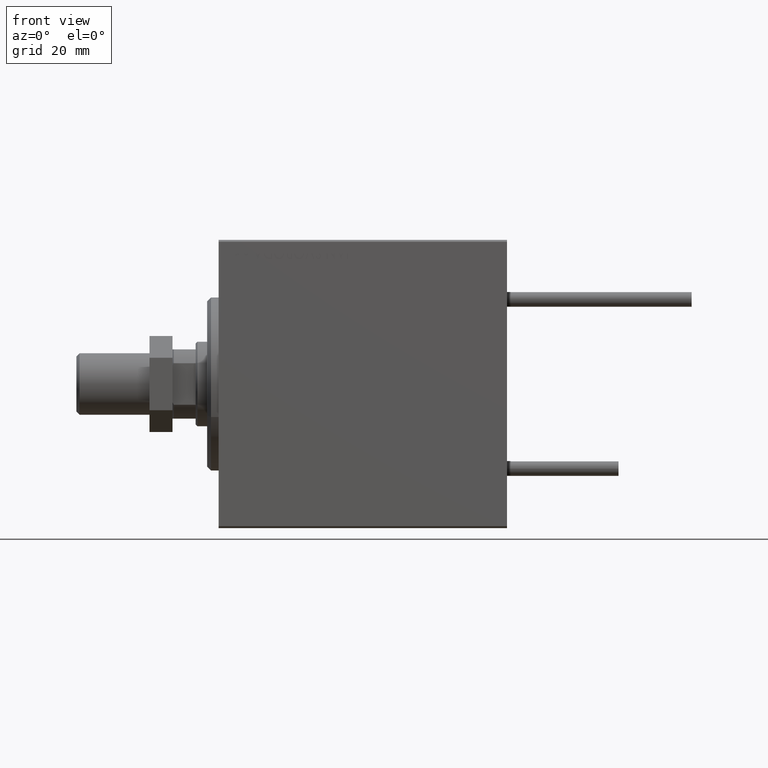
[diagram: clean part render]
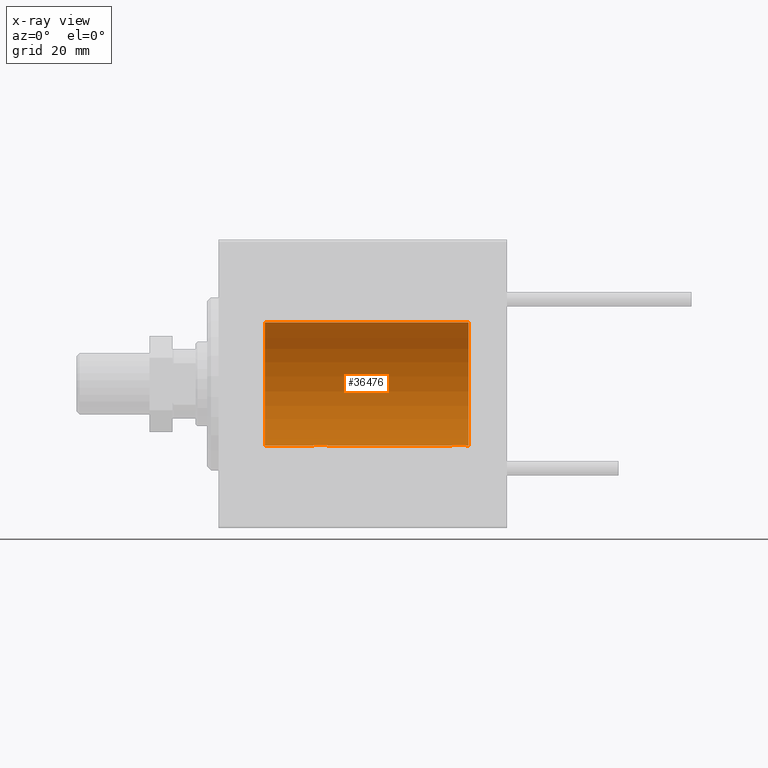
[diagram: x-ray — body ghosted, one internal face saturated and labeled with its STEP entity id]
A machine part, front view, then the same camera in x-ray: the body is ghosted and one INTERNAL B-rep face — a face not visible from any outside direction — is saturated and labeled: STEP entity #36476.
In plain terms, the highlighted cylindrical surface (partial cylindrical patch) has radius 16 mm, axis along (-1, -0, -0).
Its self-contained STEP definition (entity closure, byte-faithful):
#709 = CARTESIAN_POINT ( 'NONE',  ( 24.90948495147901554, 1.219564485341768645, -15.95382484008323409 ) ) ;
#1208 = CARTESIAN_POINT ( 'NONE',  ( 24.76431901501738864, 1.002241074716281544, -15.96895041604536125 ) ) ;
#1264 = CARTESIAN_POINT ( 'NONE',  ( 65.00000000000000000, 1.959434878635765131E-15, -16.00000000000000000 ) ) ;
#1461 = CARTESIAN_POINT ( 'NONE',  ( 28.48690924832125759, 0.2632563459770846381, -15.99834873924246814 ) ) ;
#1486 = CARTESIAN_POINT ( 'NONE',  ( 63.01913097710111344, 1.935876924222080797, -15.88247600692093187 ) ) ;
#1975 = CARTESIAN_POINT ( 'NONE',  ( 63.50311247035038065, 1.735145127817755650, -15.90580292899658055 ) ) ;
#2425 = CARTESIAN_POINT ( 'NONE',  ( 24.50000000000000000, -2.103178745110437193E-15, -16.00000000000000000 ) ) ;
#2462 = CARTESIAN_POINT ( 'NONE',  ( 65.00000000000000000, 0.000000000000000000, 16.00000000000000000 ) ) ;
#2874 = DIRECTION ( 'NONE',  ( 0.000000000000000000, 0.000000000000000000, 1.000000000000000000 ) ) ;
#3062 = EDGE_CURVE ( 'NONE', #45682, #41926, #46018, .T. ) ;
#3316 = EDGE_LOOP ( 'NONE', ( #13432, #8344, #14265, #6584, #31642, #24035, #20152, #44506 ) ) ;
#3897 = CARTESIAN_POINT ( 'NONE',  ( 65.00000000000000000, 0.000000000000000000, 0.000000000000000000 ) ) ;
#4567 = CARTESIAN_POINT ( 'NONE',  ( 28.49999999999999645, 1.959434851238818770E-15, -16.00000000000000000 ) ) ;
#4814 = CARTESIAN_POINT ( 'NONE',  ( 27.14386968033013758, 1.898058445420891305, -15.88709929148890510 ) ) ;
#5079 = CARTESIAN_POINT ( 'NONE',  ( 63.82075824828930877, 1.507649250492136606, -15.92908549642226745 ) ) ;
#5304 = CARTESIAN_POINT ( 'NONE',  ( 28.39783726498895433, 0.6445079780200565489, -15.98747331501412106 ) ) ;
#5328 = CARTESIAN_POINT ( 'NONE',  ( 61.97468243540594557, 1.947280337074165368, -15.88137861827787134 ) ) ;
#5380 = VERTEX_POINT ( 'NONE', #35590 ) ;
#5419 = CIRCLE ( 'NONE', #28383, 16.00000000000000000 ) ;
#5449 = EDGE_CURVE ( 'NONE', #38694, #17008, #22232, .T. ) ;
#5581 = CARTESIAN_POINT ( 'NONE',  ( 60.76431901501735666, 1.002241074716276437, -15.96895041604536125 ) ) ;
#5827 = CARTESIAN_POINT ( 'NONE',  ( 64.43569052926127938, 0.5198215460038770885, -15.99206840425679310 ) ) ;
#6584 = ORIENTED_EDGE ( 'NONE', *, *, #20754, .T. ) ;
#7262 = EDGE_CURVE ( 'NONE', #39260, #41926, #44209, .T. ) ;
#8344 = ORIENTED_EDGE ( 'NONE', *, *, #48400, .F. ) ;
#8655 = AXIS2_PLACEMENT_3D ( 'NONE', #18930, #23046, #30490 ) ;
#10588 = DIRECTION ( 'NONE',  ( -1.000000000000000000, -0.000000000000000000, -0.000000000000000000 ) ) ;
#11514 = CARTESIAN_POINT ( 'NONE',  ( 11.99999999999999645, 1.959434878635765131E-15, -16.00000000000000000 ) ) ;
#12092 = EDGE_CURVE ( 'NONE', #38694, #37522, #28979, .T. ) ;
#12798 = CARTESIAN_POINT ( 'NONE',  ( 62.23808537237743366, 1.999903730784159173, -15.87451999516785861 ) ) ;
#13024 = CARTESIAN_POINT ( 'NONE',  ( 27.38617757057268420, 1.797743958659262731, -15.89876304682111652 ) ) ;
#13047 = CARTESIAN_POINT ( 'NONE',  ( 64.39783726498897920, 0.6445079780200581032, -15.98747331501412816 ) ) ;
#13085 = CARTESIAN_POINT ( 'NONE',  ( 64.50000000000000000, 1.959434851248285101E-15, -16.00000000000000000 ) ) ;
#13208 = EDGE_CURVE ( 'NONE', #5380, #32744, #26595, .T. ) ;
#13260 = CARTESIAN_POINT ( 'NONE',  ( 27.82075824828932653, 1.507649250492136606, -15.92908549642227101 ) ) ;
#13285 = CARTESIAN_POINT ( 'NONE',  ( 64.29749928605036757, 0.8866640484200128958, -15.97587307151817804 ) ) ;
#13432 = ORIENTED_EDGE ( 'NONE', *, *, #3062, .F. ) ;
#14265 = ORIENTED_EDGE ( 'NONE', *, *, #13208, .T. ) ;
#14715 = DIRECTION ( 'NONE',  ( -1.000000000000000000, -0.000000000000000000, -0.000000000000000000 ) ) ;
#16361 = CARTESIAN_POINT ( 'NONE',  ( 27.01913097710113121, 1.935876924222081907, -15.88247600692093187 ) ) ;
#16598 = CARTESIAN_POINT ( 'NONE',  ( 28.29749928605040665, 0.8866640484200122296, -15.97587307151818514 ) ) ;
#16883 = CARTESIAN_POINT ( 'NONE',  ( 64.50000000000000000, 1.959434851248285101E-15, -16.00000000000000000 ) ) ;
#17008 = VERTEX_POINT ( 'NONE', #41610 ) ;
#17623 = CARTESIAN_POINT ( 'NONE',  ( 61.49340818440418843, 1.747750603376301060, -15.90457341008072767 ) ) ;
#18018 = DIRECTION ( 'NONE',  ( -1.000000000000000000, 0.000000000000000000, 0.000000000000000000 ) ) ;
#18930 = CARTESIAN_POINT ( 'NONE',  ( 11.99999999999999645, 0.000000000000000000, 0.000000000000000000 ) ) ;
#19034 = VECTOR ( 'NONE', #42004, 1000.000000000000000 ) ;
#20152 = ORIENTED_EDGE ( 'NONE', *, *, #41533, .F. ) ;
#20466 = CARTESIAN_POINT ( 'NONE',  ( 27.50311247035038775, 1.735145127817748323, -15.90580292899658410 ) ) ;
#20712 = CARTESIAN_POINT ( 'NONE',  ( 26.76251583007899271, 1.987008272775795614, -15.87616016863256263 ) ) ;
#20754 = EDGE_CURVE ( 'NONE', #32744, #37522, #32431, .T. ) ;
#20968 = CARTESIAN_POINT ( 'NONE',  ( 24.99389287531754178, 1.322357532253823909, -15.94553003295877325 ) ) ;
#20991 = CARTESIAN_POINT ( 'NONE',  ( 62.62985308350498315, 2.000047931387145983, -15.87450182760079898 ) ) ;
#21246 = CARTESIAN_POINT ( 'NONE',  ( 63.71967657442274913, 1.590393755196015002, -15.92092783521423272 ) ) ;
#21746 = CARTESIAN_POINT ( 'NONE',  ( 63.38617757057270552, 1.797743958659260510, -15.89876304682112362 ) ) ;
#22232 = B_SPLINE_CURVE_WITH_KNOTS ( 'NONE', 3,
 ( #43586, #48187, #24817, #35638, #28683, #24336, #1208, #709, #20968, #32282, #44092, #40489, #36637, #40004, #20712, #16361, #4814, #13024, #20466, #39744, #13260, #47929, #24578, #36137, #16598, #5304, #28436, #1461, #32786, #4567 ),
 .UNSPECIFIED., .F., .F.,
 ( 4, 2, 2, 2, 2, 2, 2, 2, 2, 2, 2, 2, 2, 2, 4 ),
 ( 6.061338176617876434E-19, 0.0003911894522871146732, 0.0007823789045742288043, 0.001173568356861343261, 0.001564757809148457609, 0.002347136713722686955, 0.003129515618296916518, 0.003520705070584036721, 0.003911894522871156923, 0.004303083975158277993, 0.004694273427445398196, 0.005085462879732518399, 0.005476652332019638601, 0.005867841784306759671, 0.006259031236593879007 ),
 .UNSPECIFIED. ) ;
#23046 = DIRECTION ( 'NONE',  ( -1.000000000000000000, 0.000000000000000000, 0.000000000000000000 ) ) ;
#24035 = ORIENTED_EDGE ( 'NONE', *, *, #5449, .T. ) ;
#24043 = VECTOR ( 'NONE', #14715, 1000.000000000000000 ) ;
#24336 = CARTESIAN_POINT ( 'NONE',  ( 24.70286585251780664, 0.8874076679346751817, -15.97583181162461408 ) ) ;
#24578 = CARTESIAN_POINT ( 'NONE',  ( 28.09001528100123224, 1.220169175415120932, -15.95377581882983797 ) ) ;
#24817 = CARTESIAN_POINT ( 'NONE',  ( 24.51299475991587329, 0.2623312429553279479, -15.99836091803360105 ) ) ;
#24843 = CARTESIAN_POINT ( 'NONE',  ( 60.50000000000000000, 0.1322838750249188400, -15.99999999999999645 ) ) ;
#25339 = CARTESIAN_POINT ( 'NONE',  ( 61.27043888260216420, 1.598790766515151063, -15.92099550861380841 ) ) ;
#25555 = AXIS2_PLACEMENT_3D ( 'NONE', #3897, #10588, #34460 ) ;
#25586 = CARTESIAN_POINT ( 'NONE',  ( 60.51299475991586263, 0.2623312429553253389, -15.99836091803360283 ) ) ;
#26595 = LINE ( 'NONE', #2462, #19034 ) ;
#27811 = CARTESIAN_POINT ( 'NONE',  ( 65.00000000000000000, 1.959434878635765131E-15, -16.00000000000000000 ) ) ;
#28383 = AXIS2_PLACEMENT_3D ( 'NONE', #45496, #18018, #2874 ) ;
#28436 = CARTESIAN_POINT ( 'NONE',  ( 28.43569052926130070, 0.5198215460038754232, -15.99206840425679310 ) ) ;
#28683 = CARTESIAN_POINT ( 'NONE',  ( 24.60241129944407135, 0.6452446332038127563, -15.98744362947834574 ) ) ;
#28964 = CARTESIAN_POINT ( 'NONE',  ( 60.49999999999999289, -9.573340169032840992E-15, -16.00000000000000000 ) ) ;
#28979 = LINE ( 'NONE', #1264, #33778 ) ;
#29193 = CARTESIAN_POINT ( 'NONE',  ( 64.23482670674952999, 1.003662148334373283, -15.96885838080210362 ) ) ;
#29444 = CARTESIAN_POINT ( 'NONE',  ( 62.76251583007899626, 1.987008272775793838, -15.87616016863256263 ) ) ;
#30490 = DIRECTION ( 'NONE',  ( 0.000000000000000000, 0.000000000000000000, 1.000000000000000000 ) ) ;
#31642 = ORIENTED_EDGE ( 'NONE', *, *, #12092, .F. ) ;
#32158 = DIRECTION ( 'NONE',  ( -1.000000000000000000, -0.000000000000000000, -0.000000000000000000 ) ) ;
#32282 = CARTESIAN_POINT ( 'NONE',  ( 25.27043888260214999, 1.598790766515152173, -15.92099550861380486 ) ) ;
#32431 = CIRCLE ( 'NONE', #8655, 16.00000000000000000 ) ;
#32744 = VERTEX_POINT ( 'NONE', #43160 ) ;
#32786 = CARTESIAN_POINT ( 'NONE',  ( 28.49999999999999645, 0.1305944228192321699, -16.00000000000000000 ) ) ;
#33309 = CARTESIAN_POINT ( 'NONE',  ( 64.09001528100125711, 1.220169175415124929, -15.95377581882983975 ) ) ;
#33778 = VECTOR ( 'NONE', #44149, 1000.000000000000000 ) ;
#34283 = CARTESIAN_POINT ( 'NONE',  ( 65.00000000000000000, 1.959434878635765131E-15, -16.00000000000000000 ) ) ;
#34460 = DIRECTION ( 'NONE',  ( 0.000000000000000000, 0.000000000000000000, 1.000000000000000000 ) ) ;
#34796 = VECTOR ( 'NONE', #32158, 1000.000000000000000 ) ;
#35590 = CARTESIAN_POINT ( 'NONE',  ( 65.00000000000000000, 0.000000000000000000, 16.00000000000000000 ) ) ;
#35638 = CARTESIAN_POINT ( 'NONE',  ( 24.56388673317935556, 0.5181437283162043661, -15.99211983514074653 ) ) ;
#36137 = CARTESIAN_POINT ( 'NONE',  ( 28.23482670674955486, 1.003662148334367954, -15.96885838080211073 ) ) ;
#36413 = CARTESIAN_POINT ( 'NONE',  ( 64.48690924832126825, 0.2632563459770859149, -15.99834873924246459 ) ) ;
#36476 = ADVANCED_FACE ( 'NONE', ( #42660 ), #42160, .F. ) ;
#36637 = CARTESIAN_POINT ( 'NONE',  ( 26.23808537237744787, 1.999903730784159617, -15.87451999516785861 ) ) ;
#37152 = CARTESIAN_POINT ( 'NONE',  ( 60.56388673317934490, 0.5181437283162021457, -15.99211983514074653 ) ) ;
#37415 = CARTESIAN_POINT ( 'NONE',  ( 60.60241129944407845, 0.6452446332038094257, -15.98744362947834929 ) ) ;
#37522 = VERTEX_POINT ( 'NONE', #11514 ) ;
#38694 = VERTEX_POINT ( 'NONE', #2425 ) ;
#39260 = VERTEX_POINT ( 'NONE', #28964 ) ;
#39370 = LINE ( 'NONE', #27811, #34796 ) ;
#39744 = CARTESIAN_POINT ( 'NONE',  ( 27.71967657442277400, 1.590393755196007008, -15.92092783521424337 ) ) ;
#40004 = CARTESIAN_POINT ( 'NONE',  ( 26.62985308350499025, 2.000047931387146871, -15.87450182760080253 ) ) ;
#40272 = CARTESIAN_POINT ( 'NONE',  ( 60.49999999999999289, -9.573340169032840992E-15, -16.00000000000000000 ) ) ;
#40489 = CARTESIAN_POINT ( 'NONE',  ( 25.97468243540595978, 1.947280337074166923, -15.88137861827786779 ) ) ;
#40512 = CARTESIAN_POINT ( 'NONE',  ( 60.99389287531753467, 1.322357532253821688, -15.94553003295876970 ) ) ;
#41002 = CARTESIAN_POINT ( 'NONE',  ( 63.14386968033014114, 1.898058445420889750, -15.88709929148890510 ) ) ;
#41533 = EDGE_CURVE ( 'NONE', #39260, #17008, #39370, .T. ) ;
#41610 = CARTESIAN_POINT ( 'NONE',  ( 28.49999999999999645, 1.959434851238818770E-15, -16.00000000000000000 ) ) ;
#41926 = VERTEX_POINT ( 'NONE', #13085 ) ;
#42004 = DIRECTION ( 'NONE',  ( -1.000000000000000000, -0.000000000000000000, -0.000000000000000000 ) ) ;
#42160 = CYLINDRICAL_SURFACE ( 'NONE', #25555, 16.00000000000000000 ) ;
#42660 = FACE_OUTER_BOUND ( 'NONE', #3316, .T. ) ;
#43160 = CARTESIAN_POINT ( 'NONE',  ( 11.99999999999999645, 0.000000000000000000, 16.00000000000000000 ) ) ;
#43586 = CARTESIAN_POINT ( 'NONE',  ( 24.50000000000000000, -2.103178745110437193E-15, -16.00000000000000000 ) ) ;
#44092 = CARTESIAN_POINT ( 'NONE',  ( 25.49340818440419199, 1.747750603376302614, -15.90457341008072412 ) ) ;
#44149 = DIRECTION ( 'NONE',  ( -1.000000000000000000, -0.000000000000000000, -0.000000000000000000 ) ) ;
#44209 = B_SPLINE_CURVE_WITH_KNOTS ( 'NONE', 3,
 ( #40272, #24843, #25586, #37152, #37415, #44357, #5581, #44855, #40512, #25339, #17623, #5328, #12798, #20991, #29444, #1486, #41002, #21746, #1975, #21246, #5079, #48210, #33309, #29193, #13285, #13047, #5827, #36413, #45105, #16883 ),
 .UNSPECIFIED., .F., .F.,
 ( 4, 2, 2, 2, 2, 2, 2, 2, 2, 2, 2, 2, 2, 2, 4 ),
 ( 1.991932713717143819E-18, 0.0003911894522871088727, 0.0007823789045742156854, 0.001173568356861322227, 0.001564757809148428769, 0.002347136713722657465, 0.003129515618296885727, 0.003520705070584010266, 0.003911894522871134372, 0.004303083975158258911, 0.004694273427445384318, 0.005085462879732508858, 0.005476652332019634264, 0.005867841784306758804, 0.006259031236593884211 ),
 .UNSPECIFIED. ) ;
#44357 = CARTESIAN_POINT ( 'NONE',  ( 60.70286585251778178, 0.8874076679346716290, -15.97583181162461052 ) ) ;
#44506 = ORIENTED_EDGE ( 'NONE', *, *, #7262, .T. ) ;
#44855 = CARTESIAN_POINT ( 'NONE',  ( 60.90948495147899422, 1.219564485341763760, -15.95382484008323054 ) ) ;
#45105 = CARTESIAN_POINT ( 'NONE',  ( 64.49999999999997158, 0.1305944228192322254, -15.99999999999999289 ) ) ;
#45496 = CARTESIAN_POINT ( 'NONE',  ( 65.00000000000000000, 0.000000000000000000, 0.000000000000000000 ) ) ;
#45682 = VERTEX_POINT ( 'NONE', #34283 ) ;
#46018 = LINE ( 'NONE', #49871, #24043 ) ;
#47929 = CARTESIAN_POINT ( 'NONE',  ( 28.00737160312429452, 1.321075116345887368, -15.94564302722882587 ) ) ;
#48187 = CARTESIAN_POINT ( 'NONE',  ( 24.50000000000000000, 0.1322838750249235862, -16.00000000000000355 ) ) ;
#48210 = CARTESIAN_POINT ( 'NONE',  ( 64.00737160312429808, 1.321075116345888256, -15.94564302722882232 ) ) ;
#48400 = EDGE_CURVE ( 'NONE', #5380, #45682, #5419, .T. ) ;
#49871 = CARTESIAN_POINT ( 'NONE',  ( 65.00000000000000000, 1.959434878635765131E-15, -16.00000000000000000 ) ) ;